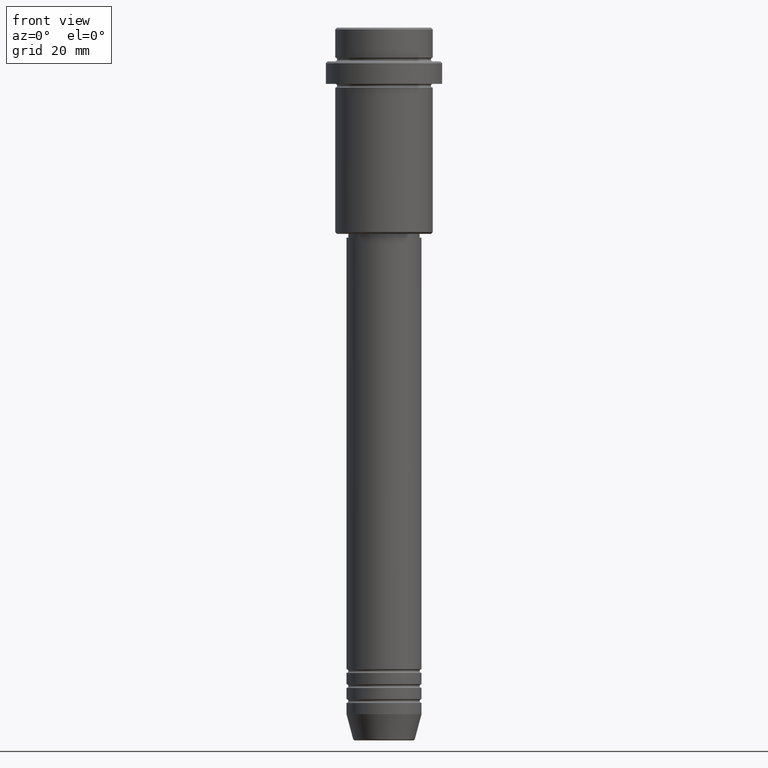
[diagram: clean part render]
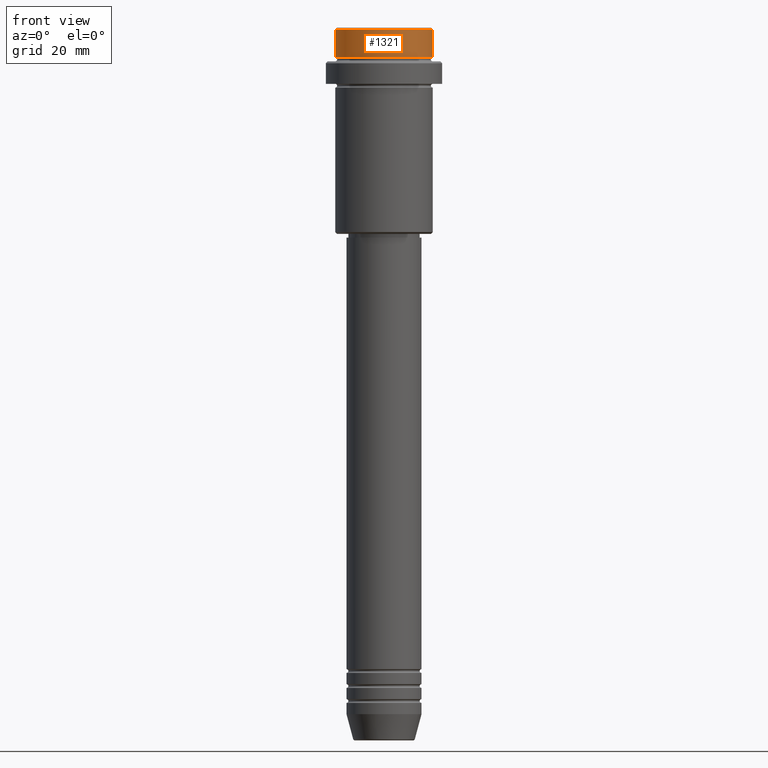
[diagram: same view with one face highlighted and labeled with its STEP entity id]
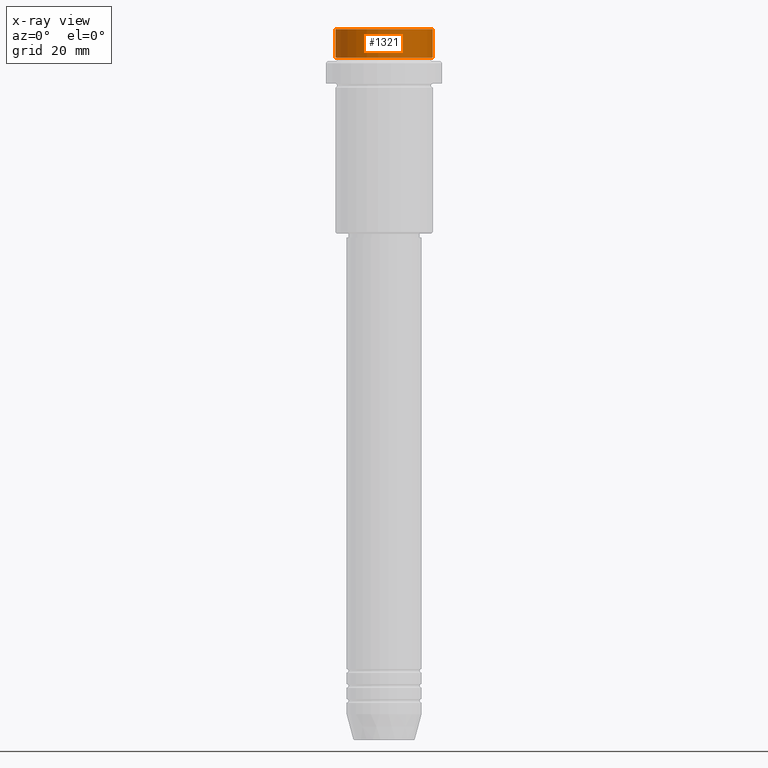
[diagram: x-ray of the same camera — body ghosted, the highlighted face saturated]
A machine part, front view. The second image highlights one B-rep face of the part: STEP entity #1321.
The next image is the same camera in x-ray: the body ghosted, the highlighted face saturated — about 0% of this face is hidden behind the body in this view.
In plain terms, the highlighted cylindrical surface (partial cylindrical patch) has radius 13 mm, axis along (-0, -0, 1).
Its self-contained STEP definition (entity closure, byte-faithful):
#60 = LINE ( 'NONE', #387, #1285 ) ;
#73 = CIRCLE ( 'NONE', #1368, 12.99999999999999822 ) ;
#118 = AXIS2_PLACEMENT_3D ( 'NONE', #357, #230, #674 ) ;
#125 = CARTESIAN_POINT ( 'NONE',  ( 0.000000000000000000, 0.000000000000000000, -7.999999999999998224 ) ) ;
#126 = CARTESIAN_POINT ( 'NONE',  ( -12.99999999999999822, 1.592040838891558898E-15, -0.4999999999999761302 ) ) ;
#198 = VERTEX_POINT ( 'NONE', #126 ) ;
#230 = DIRECTION ( 'NONE',  ( 0.000000000000000000, 0.000000000000000000, -1.000000000000000000 ) ) ;
#248 = ORIENTED_EDGE ( 'NONE', *, *, #1018, .T. ) ;
#357 = CARTESIAN_POINT ( 'NONE',  ( 0.000000000000000000, 0.000000000000000000, -0.4999999999999761302 ) ) ;
#367 = DIRECTION ( 'NONE',  ( -0.000000000000000000, -0.000000000000000000, 1.000000000000000000 ) ) ;
#373 = VERTEX_POINT ( 'NONE', #827 ) ;
#387 = CARTESIAN_POINT ( 'NONE',  ( 12.99999999999999822, 0.000000000000000000, 0.000000000000000000 ) ) ;
#435 = ORIENTED_EDGE ( 'NONE', *, *, #500, .T. ) ;
#448 = CARTESIAN_POINT ( 'NONE',  ( 12.99999999999999822, 0.000000000000000000, -0.4999999999999761302 ) ) ;
#500 = EDGE_CURVE ( 'NONE', #373, #974, #73, .T. ) ;
#520 = CYLINDRICAL_SURFACE ( 'NONE', #1260, 12.99999999999999822 ) ;
#560 = CARTESIAN_POINT ( 'NONE',  ( 12.99999999999999822, 0.000000000000000000, -7.999999999999998224 ) ) ;
#622 = VECTOR ( 'NONE', #367, 1000.000000000000000 ) ;
#636 = ORIENTED_EDGE ( 'NONE', *, *, #1094, .T. ) ;
#674 = DIRECTION ( 'NONE',  ( 1.000000000000000000, 0.000000000000000000, 0.000000000000000000 ) ) ;
#702 = LINE ( 'NONE', #807, #622 ) ;
#746 = DIRECTION ( 'NONE',  ( 1.000000000000000000, 0.000000000000000000, 0.000000000000000000 ) ) ;
#807 = CARTESIAN_POINT ( 'NONE',  ( -12.99999999999999822, 1.592040838891558898E-15, 0.000000000000000000 ) ) ;
#827 = CARTESIAN_POINT ( 'NONE',  ( -12.99999999999999822, 1.592040838891558898E-15, -7.999999999999998224 ) ) ;
#844 = CARTESIAN_POINT ( 'NONE',  ( 0.000000000000000000, 0.000000000000000000, 0.000000000000000000 ) ) ;
#934 = FACE_OUTER_BOUND ( 'NONE', #1167, .T. ) ;
#971 = VERTEX_POINT ( 'NONE', #448 ) ;
#974 = VERTEX_POINT ( 'NONE', #560 ) ;
#989 = ORIENTED_EDGE ( 'NONE', *, *, #1092, .F. ) ;
#998 = DIRECTION ( 'NONE',  ( -0.000000000000000000, -0.000000000000000000, 1.000000000000000000 ) ) ;
#1018 = EDGE_CURVE ( 'NONE', #971, #198, #1231, .T. ) ;
#1092 = EDGE_CURVE ( 'NONE', #373, #198, #702, .T. ) ;
#1094 = EDGE_CURVE ( 'NONE', #974, #971, #60, .T. ) ;
#1167 = EDGE_LOOP ( 'NONE', ( #989, #435, #636, #248 ) ) ;
#1231 = CIRCLE ( 'NONE', #118, 12.99999999999999822 ) ;
#1260 = AXIS2_PLACEMENT_3D ( 'NONE', #844, #1284, #746 ) ;
#1284 = DIRECTION ( 'NONE',  ( -0.000000000000000000, -0.000000000000000000, 1.000000000000000000 ) ) ;
#1285 = VECTOR ( 'NONE', #1347, 1000.000000000000000 ) ;
#1310 = DIRECTION ( 'NONE',  ( 1.000000000000000000, 0.000000000000000000, 0.000000000000000000 ) ) ;
#1321 = ADVANCED_FACE ( 'NONE', ( #934 ), #520, .T. ) ;
#1347 = DIRECTION ( 'NONE',  ( -0.000000000000000000, -0.000000000000000000, 1.000000000000000000 ) ) ;
#1368 = AXIS2_PLACEMENT_3D ( 'NONE', #125, #998, #1310 ) ;